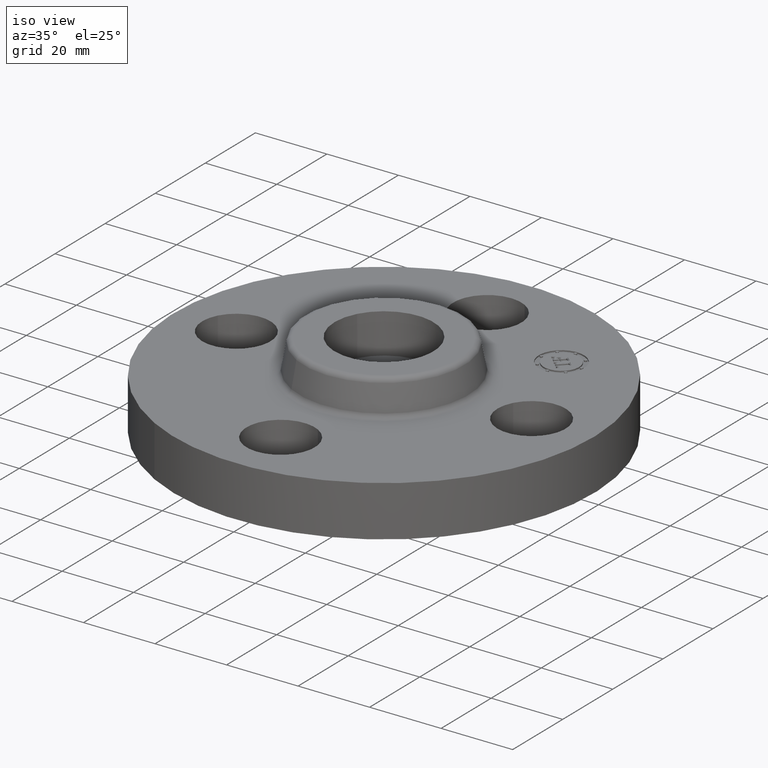
[diagram: clean part render]
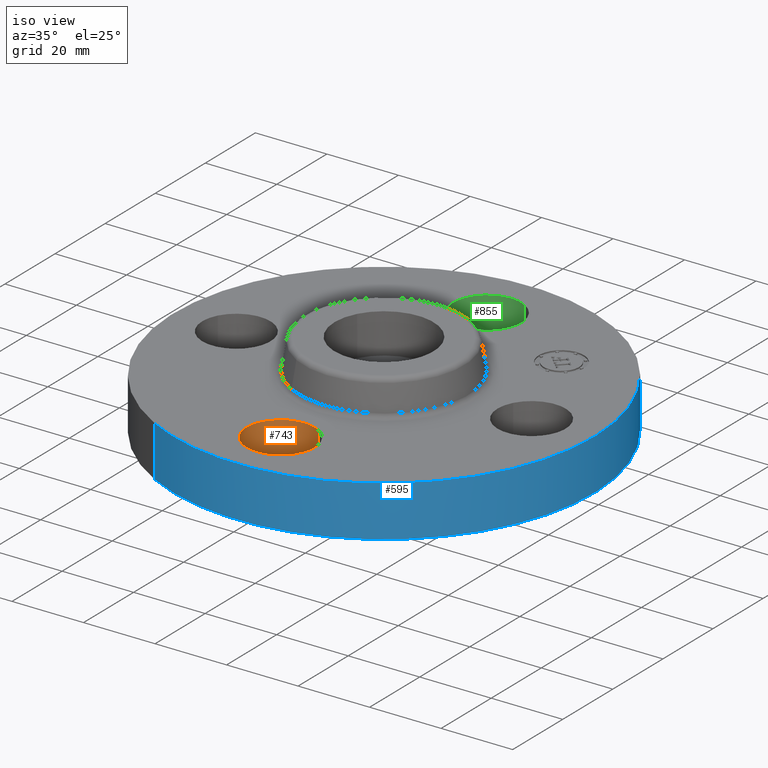
[diagram: same view with three faces highlighted in distinct colors, each labeled with its STEP entity id]
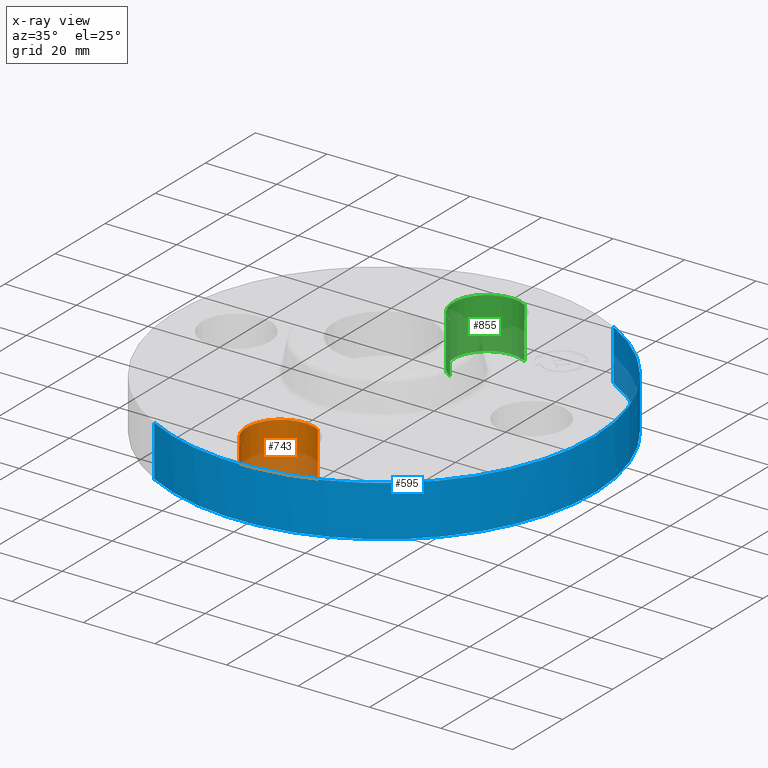
[diagram: x-ray of the same camera — body ghosted, the three highlighted faces saturated]
A machine part, iso view with three faces highlighted in distinct colors.
The next image is the same camera in x-ray (body ghosted, the three faces saturated) — at least one of them is partly hidden behind the body in this view.
Their STEP definitions:

[orange] entity #743 — the highlighted cylindrical surface (partial cylindrical patch) has radius 9.525 mm, axis along (0, 0, -1).
#416=AXIS2_PLACEMENT_3D('Circle Axis2P3D',#414,#415,$) ;
#718=AXIS2_PLACEMENT_3D('Cylinder Axis2P3D',#715,#716,#717) ;
#409=CARTESIAN_POINT('Vertex',(0.179784576973,-1.29590653933,0.)) ;
#411=CARTESIAN_POINT('Vertex',(-0.179784576973,-1.95409346073,0.)) ;
#414=CARTESIAN_POINT('Axis2P3D Location',(-3.49676543189E-017,-1.62500000003,0.)) ;
#682=CARTESIAN_POINT('Line Origine',(0.179784576977,-1.2959065393,0.279999999998)) ;
#686=CARTESIAN_POINT('Vertex',(0.179784576973,-1.29590653933,0.560000000002)) ;
#689=CARTESIAN_POINT('Line Origine',(-0.179784576977,-1.95409346072,0.279999999998)) ;
#693=CARTESIAN_POINT('Vertex',(-0.179784576977,-1.95409346072,0.559999999987)) ;
#715=CARTESIAN_POINT('Axis2P3D Location',(-1.8023868212E-016,-1.62500000001,0.556062992128)) ;
#721=CARTESIAN_POINT('Control Point',(-0.179784576977,-1.95409346072,0.560000000002)) ;
#722=CARTESIAN_POINT('Control Point',(-0.231478456903,-1.92585296541,0.560000000001)) ;
#723=CARTESIAN_POINT('Control Point',(-0.27762732854,-1.88746240051,0.560000000001)) ;
#724=CARTESIAN_POINT('Control Point',(-0.315564920645,-1.84036533168,0.56)) ;
#725=CARTESIAN_POINT('Control Point',(-0.370929207243,-1.73383359426,0.559999999998)) ;
#726=CARTESIAN_POINT('Control Point',(-0.38190110985,-1.61427677655,0.559999999997)) ;
#727=CARTESIAN_POINT('Control Point',(-0.375424381748,-1.55414819117,0.559999999996)) ;
#728=CARTESIAN_POINT('Control Point',(-0.339243530298,-1.43967041474,0.559999999995)) ;
#729=CARTESIAN_POINT('Control Point',(-0.262462400496,-1.34737267147,0.559999999993)) ;
#730=CARTESIAN_POINT('Control Point',(-0.215365331668,-1.30943507936,0.559999999992)) ;
#731=CARTESIAN_POINT('Control Point',(-0.108833594252,-1.25407079277,0.559999999991)) ;
#732=CARTESIAN_POINT('Control Point',(0.0107232234562,-1.24309889016,0.55999999999)) ;
#733=CARTESIAN_POINT('Control Point',(0.0708518088378,-1.24957561826,0.559999999989)) ;
#734=CARTESIAN_POINT('Control Point',(0.128090697051,-1.26766604399,0.559999999988)) ;
#735=CARTESIAN_POINT('Control Point',(0.179784576977,-1.2959065393,0.559999999987)) ;
#415=DIRECTION('Axis2P3D Direction',(0.,0.,-0.0393700787402)) ;
#683=DIRECTION('Vector Direction',(0.,0.,-0.0393700787402)) ;
#690=DIRECTION('Vector Direction',(0.,0.,-0.0393700787402)) ;
#716=DIRECTION('Axis2P3D Direction',(0.,0.,-0.0393700787402)) ;
#717=DIRECTION('Axis2P3D XDirection',(-0.0188750212049,-0.0345504945626,0.)) ;
#684=VECTOR('Line Direction',#683,0.0393700787402) ;
#691=VECTOR('Line Direction',#690,0.0393700787402) ;
#738=ORIENTED_EDGE('',*,*,#695,.F.) ;
#739=ORIENTED_EDGE('',*,*,#418,.T.) ;
#740=ORIENTED_EDGE('',*,*,#688,.T.) ;
#741=ORIENTED_EDGE('',*,*,#736,.F.) ;
#743=ADVANCED_FACE('PartBody',(#742),#719,.F.) ;
#720=B_SPLINE_CURVE_WITH_KNOTS('',5,(#721,#722,#723,#724,#725,#726,#727,#728,#729,#730,#731,#732,#733,#734,#735),.UNSPECIFIED.,.F.,.U.,(6,3,3,3,6),(-14.9618350128,-7.48091750638,0.,7.48091750638,14.9618350128),.UNSPECIFIED.) ;
#417=CIRCLE('generated circle',#416,0.374999999988) ;
#719=CYLINDRICAL_SURFACE('generated cylinder',#718,0.375000000001) ;
#418=EDGE_CURVE('',#412,#410,#417,.T.) ;
#688=EDGE_CURVE('',#410,#687,#685,.F.) ;
#695=EDGE_CURVE('',#412,#694,#692,.F.) ;
#736=EDGE_CURVE('',#694,#687,#720,.T.) ;
#737=EDGE_LOOP('',(#738,#739,#740,#741)) ;
#742=FACE_OUTER_BOUND('',#737,.T.) ;
#685=LINE('Line',#682,#684) ;
#692=LINE('Line',#689,#691) ;
#410=VERTEX_POINT('',#409) ;
#412=VERTEX_POINT('',#411) ;
#687=VERTEX_POINT('',#686) ;
#694=VERTEX_POINT('',#693) ;

[blue] entity #595 — the highlighted cylindrical surface (partial cylindrical patch) has radius 58.674 mm, axis along (0, 0, -1).
#376=AXIS2_PLACEMENT_3D('Circle Axis2P3D',#374,#375,$) ;
#570=AXIS2_PLACEMENT_3D('Cylinder Axis2P3D',#567,#568,#569) ;
#369=CARTESIAN_POINT('Vertex',(-1.10747299421,-2.02721571801,0.)) ;
#371=CARTESIAN_POINT('Vertex',(1.10747299421,2.02721571797,0.)) ;
#374=CARTESIAN_POINT('Axis2P3D Location',(-3.08543392061E-011,3.72685259731E-013,0.)) ;
#534=CARTESIAN_POINT('Line Origine',(-1.10747299418,-2.02721571798,0.280000000025)) ;
#538=CARTESIAN_POINT('Vertex',(-1.10747299418,-2.02721571798,0.560000000014)) ;
#545=CARTESIAN_POINT('Vertex',(1.10747299418,2.02721571798,0.560000000014)) ;
#548=CARTESIAN_POINT('Line Origine',(1.10747299418,2.02721571798,0.280000000025)) ;
#567=CARTESIAN_POINT('Axis2P3D Location',(0.,0.,0.470000000002)) ;
#573=CARTESIAN_POINT('Control Point',(1.10747299418,2.02721571797,0.560000000014)) ;
#574=CARTESIAN_POINT('Control Point',(1.42590729452,1.85325426685,0.560000000014)) ;
#575=CARTESIAN_POINT('Control Point',(1.71018434381,1.61676838705,0.560000000013)) ;
#576=CARTESIAN_POINT('Control Point',(1.94387991118,1.32665044307,0.560000000012)) ;
#577=CARTESIAN_POINT('Control Point',(2.28492391662,0.67041494059,0.560000000011)) ;
#578=CARTESIAN_POINT('Control Point',(2.35251083668,-0.066055056493,0.56000000001)) ;
#579=CARTESIAN_POINT('Control Point',(2.31261419157,-0.436447142444,0.560000000009)) ;
#580=CARTESIAN_POINT('Control Point',(2.08974014664,-1.14163024524,0.560000000008)) ;
#581=CARTESIAN_POINT('Control Point',(1.61676838706,-1.71018434381,0.560000000007)) ;
#582=CARTESIAN_POINT('Control Point',(1.32665044308,-1.94387991118,0.560000000006)) ;
#583=CARTESIAN_POINT('Control Point',(0.670414940591,-2.28492391662,0.560000000005)) ;
#584=CARTESIAN_POINT('Control Point',(-0.0660550564923,-2.35251083668,0.560000000004)) ;
#585=CARTESIAN_POINT('Control Point',(-0.436447142444,-2.31261419157,0.560000000003)) ;
#586=CARTESIAN_POINT('Control Point',(-0.78903869384,-2.2011771691,0.560000000003)) ;
#587=CARTESIAN_POINT('Control Point',(-1.10747299418,-2.02721571798,0.560000000002)) ;
#375=DIRECTION('Axis2P3D Direction',(0.,0.,-0.0393700787402)) ;
#535=DIRECTION('Vector Direction',(0.,0.,-0.0393700787402)) ;
#549=DIRECTION('Vector Direction',(0.,0.,-0.0393700787402)) ;
#568=DIRECTION('Axis2P3D Direction',(0.,0.,-0.0393700787402)) ;
#569=DIRECTION('Axis2P3D XDirection',(0.0188750212049,0.0345504945626,0.)) ;
#536=VECTOR('Line Direction',#535,0.0393700787402) ;
#550=VECTOR('Line Direction',#549,0.0393700787402) ;
#590=ORIENTED_EDGE('',*,*,#378,.F.) ;
#591=ORIENTED_EDGE('',*,*,#552,.T.) ;
#592=ORIENTED_EDGE('',*,*,#588,.T.) ;
#593=ORIENTED_EDGE('',*,*,#540,.F.) ;
#595=ADVANCED_FACE('PartBody',(#594),#571,.T.) ;
#572=B_SPLINE_CURVE_WITH_KNOTS('',5,(#573,#574,#575,#576,#577,#578,#579,#580,#581,#582,#583,#584,#585,#586,#587),.UNSPECIFIED.,.F.,.U.,(6,3,3,3,6),(-92.1649036787,-46.0824518394,-7.1054273576E-015,46.0824518394,92.1649036787),.UNSPECIFIED.) ;
#377=CIRCLE('generated circle',#376,2.31000000004) ;
#571=CYLINDRICAL_SURFACE('generated cylinder',#570,2.31000000001) ;
#378=EDGE_CURVE('',#372,#370,#377,.T.) ;
#540=EDGE_CURVE('',#370,#539,#537,.F.) ;
#552=EDGE_CURVE('',#372,#546,#551,.F.) ;
#588=EDGE_CURVE('',#546,#539,#572,.T.) ;
#589=EDGE_LOOP('',(#590,#591,#592,#593)) ;
#594=FACE_OUTER_BOUND('',#589,.T.) ;
#537=LINE('Line',#534,#536) ;
#551=LINE('Line',#548,#550) ;
#370=VERTEX_POINT('',#369) ;
#372=VERTEX_POINT('',#371) ;
#539=VERTEX_POINT('',#538) ;
#546=VERTEX_POINT('',#545) ;

[green] entity #855 — the highlighted cylindrical surface (partial cylindrical patch) has radius 9.525 mm, axis along (-0, 0, -1).
#443=AXIS2_PLACEMENT_3D('Circle Axis2P3D',#441,#442,$) ;
#828=AXIS2_PLACEMENT_3D('Cylinder Axis2P3D',#825,#826,#827) ;
#846=AXIS2_PLACEMENT_3D('Circle Axis2P3D',#844,#845,$) ;
#441=CARTESIAN_POINT('Axis2P3D Location',(-3.49676543189E-017,1.625,0.)) ;
#445=CARTESIAN_POINT('Vertex',(-0.179784576973,1.2959065393,0.)) ;
#447=CARTESIAN_POINT('Vertex',(0.179784576973,1.9540934607,0.)) ;
#825=CARTESIAN_POINT('Axis2P3D Location',(-2.98507657293E-016,1.62500000001,0.556062992128)) ;
#830=CARTESIAN_POINT('Line Origine',(-0.179784576977,1.2959065393,0.279999999998)) ;
#834=CARTESIAN_POINT('Vertex',(-0.179784576973,1.2959065393,0.560000000002)) ;
#837=CARTESIAN_POINT('Line Origine',(0.179784576977,1.95409346072,0.279999999998)) ;
#841=CARTESIAN_POINT('Vertex',(0.179784576977,1.95409346072,0.559999999987)) ;
#844=CARTESIAN_POINT('Axis2P3D Location',(-2.98507657293E-016,1.62500000001,0.559999999987)) ;
#442=DIRECTION('Axis2P3D Direction',(0.,0.,-0.0393700787402)) ;
#826=DIRECTION('Axis2P3D Direction',(-0.,0.,-0.0393700787402)) ;
#827=DIRECTION('Axis2P3D XDirection',(-0.0188750212049,-0.0345504945626,0.)) ;
#831=DIRECTION('Vector Direction',(0.,0.,-0.0393700787402)) ;
#838=DIRECTION('Vector Direction',(0.,0.,-0.0393700787402)) ;
#845=DIRECTION('Axis2P3D Direction',(-0.,0.,-0.0393700787402)) ;
#832=VECTOR('Line Direction',#831,0.0393700787402) ;
#839=VECTOR('Line Direction',#838,0.0393700787402) ;
#850=ORIENTED_EDGE('',*,*,#836,.F.) ;
#851=ORIENTED_EDGE('',*,*,#449,.T.) ;
#852=ORIENTED_EDGE('',*,*,#843,.T.) ;
#853=ORIENTED_EDGE('',*,*,#848,.F.) ;
#855=ADVANCED_FACE('PartBody',(#854),#829,.F.) ;
#444=CIRCLE('generated circle',#443,0.374999999988) ;
#847=CIRCLE('generated circle',#846,0.375000000001) ;
#829=CYLINDRICAL_SURFACE('generated cylinder',#828,0.375000000001) ;
#449=EDGE_CURVE('',#446,#448,#444,.T.) ;
#836=EDGE_CURVE('',#446,#835,#833,.F.) ;
#843=EDGE_CURVE('',#448,#842,#840,.F.) ;
#848=EDGE_CURVE('',#835,#842,#847,.T.) ;
#849=EDGE_LOOP('',(#850,#851,#852,#853)) ;
#854=FACE_OUTER_BOUND('',#849,.T.) ;
#833=LINE('Line',#830,#832) ;
#840=LINE('Line',#837,#839) ;
#446=VERTEX_POINT('',#445) ;
#448=VERTEX_POINT('',#447) ;
#835=VERTEX_POINT('',#834) ;
#842=VERTEX_POINT('',#841) ;